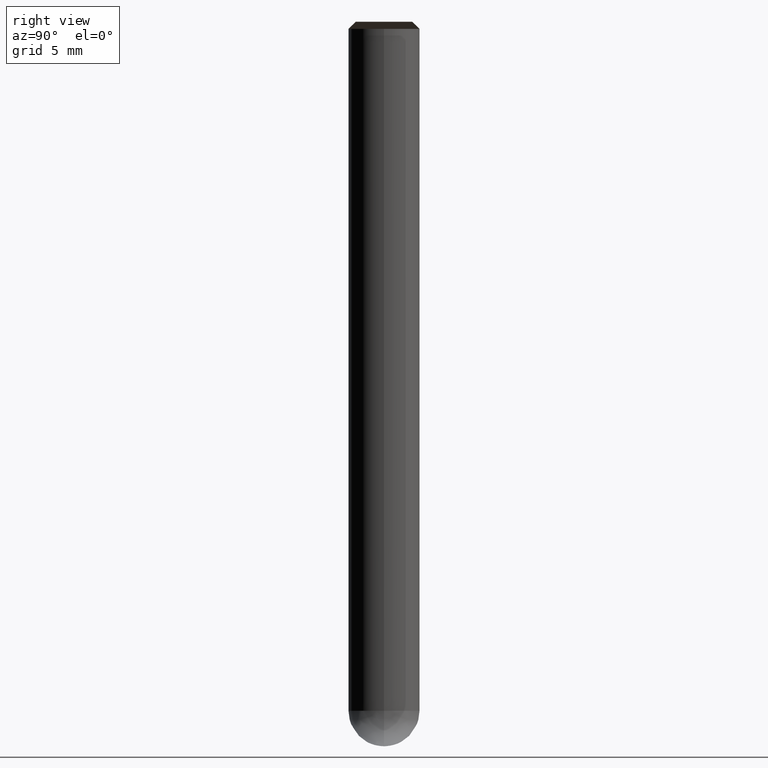
[diagram: clean part render]
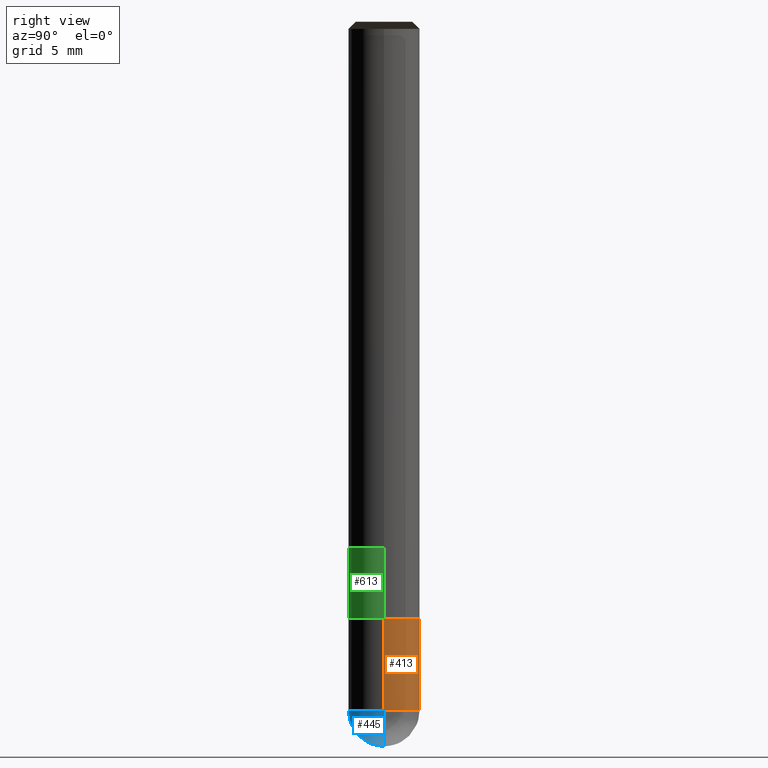
[diagram: same view with three faces highlighted in distinct colors, each labeled with its STEP entity id]
A machine part, right view with three faces highlighted in distinct colors.
Their STEP definitions:

[orange] entity #413 — the highlighted face is a freeform B-spline surface patch.
#328=CARTESIAN_POINT('',(2.5,0.0,-11.5));
#329=CARTESIAN_POINT('',(2.5,2.5,-11.5));
#330=CARTESIAN_POINT('',(0.0,2.5,-11.5));
#331=CARTESIAN_POINT('',(-2.5,2.5,-11.5));
#332=CARTESIAN_POINT('',(-2.5,0.0,-11.5));
#333=CARTESIAN_POINT('',(2.5,0.0,-5.0));
#334=CARTESIAN_POINT('',(2.5,2.5,-5.0));
#335=CARTESIAN_POINT('',(0.0,2.5,-5.0));
#336=CARTESIAN_POINT('',(-2.5,2.5,-5.0));
#337=CARTESIAN_POINT('',(-2.5,0.0,-5.0));
#394=(
BOUNDED_SURFACE()
B_SPLINE_SURFACE(1,2,(
(#328,#329,#330,#331,#332),
(#333,#334,#335,#336,#337)
), .UNSPECIFIED.,.F.,.F.,.F.)
B_SPLINE_SURFACE_WITH_KNOTS((2,2),(3,2,3),(
0.0,1.0),(
0.0,0.5,1.0), .UNSPECIFIED.)
GEOMETRIC_REPRESENTATION_ITEM()
RATIONAL_B_SPLINE_SURFACE(((1.0,0.707106781187,1.0,0.707106781187,1.0),
(1.0,0.707106781187,1.0,0.707106781187,1.0)
))
REPRESENTATION_ITEM('')
SURFACE()
);
#395=(
BOUNDED_CURVE()
B_SPLINE_CURVE(2,(#332,#331,#330,#329,#328),.UNSPECIFIED.,.F.,.F.)
B_SPLINE_CURVE_WITH_KNOTS((3,2,3),
(0.0,0.5,1.0),.UNSPECIFIED.)
CURVE()
GEOMETRIC_REPRESENTATION_ITEM()
RATIONAL_B_SPLINE_CURVE((1.0,0.707106781187,1.0,0.707106781187,1.0))
REPRESENTATION_ITEM('')
);
#396=(
BOUNDED_CURVE()
B_SPLINE_CURVE(1,(#328,#333),.UNSPECIFIED.,.F.,.F.)
B_SPLINE_CURVE_WITH_KNOTS((2,2),
(0.0,1.0),.UNSPECIFIED.)
CURVE()
GEOMETRIC_REPRESENTATION_ITEM()
RATIONAL_B_SPLINE_CURVE((1.0,1.0))
REPRESENTATION_ITEM('')
);
#397=(
BOUNDED_CURVE()
B_SPLINE_CURVE(2,(#333,#334,#335,#336,#337),.UNSPECIFIED.,.F.,.F.)
B_SPLINE_CURVE_WITH_KNOTS((3,2,3),
(0.0,0.5,1.0),.UNSPECIFIED.)
CURVE()
GEOMETRIC_REPRESENTATION_ITEM()
RATIONAL_B_SPLINE_CURVE((1.0,0.707106781187,1.0,0.707106781187,1.0))
REPRESENTATION_ITEM('')
);
#398=(
BOUNDED_CURVE()
B_SPLINE_CURVE(1,(#337,#332),.UNSPECIFIED.,.F.,.F.)
B_SPLINE_CURVE_WITH_KNOTS((2,2),
(0.0,1.0),.UNSPECIFIED.)
CURVE()
GEOMETRIC_REPRESENTATION_ITEM()
RATIONAL_B_SPLINE_CURVE((1.0,1.0))
REPRESENTATION_ITEM('')
);
#399=VERTEX_POINT('',#328);
#400=VERTEX_POINT('',#332);
#401=VERTEX_POINT('',#333);
#402=VERTEX_POINT('',#337);
#403=EDGE_CURVE('',#400,#399,#395,.T.);
#404=EDGE_CURVE('',#399,#401,#396,.T.);
#405=EDGE_CURVE('',#401,#402,#397,.T.);
#406=EDGE_CURVE('',#402,#400,#398,.T.);
#407=ORIENTED_EDGE('',*,*,#403,.T.);
#408=ORIENTED_EDGE('',*,*,#404,.T.);
#409=ORIENTED_EDGE('',*,*,#405,.T.);
#410=ORIENTED_EDGE('',*,*,#406,.T.);
#411=EDGE_LOOP('',(#407,#408,#409,#410));
#412=FACE_OUTER_BOUND('',#411,.T.);
#413=ADVANCED_FACE('',(#412),#394,.T.);

[blue] entity #445 — the highlighted face is a freeform B-spline surface patch.
#322=CARTESIAN_POINT('',(0.0,0.0,-14.0));
#323=CARTESIAN_POINT('',(2.5,0.0,-14.0));
#327=CARTESIAN_POINT('',(-2.5,0.0,-14.0));
#328=CARTESIAN_POINT('',(2.5,0.0,-11.5));
#332=CARTESIAN_POINT('',(-2.5,0.0,-11.5));
#339=CARTESIAN_POINT('',(-2.5,-2.5,-14.0));
#340=CARTESIAN_POINT('',(0.0,-2.5,-14.0));
#341=CARTESIAN_POINT('',(2.5,-2.5,-14.0));
#342=CARTESIAN_POINT('',(-2.5,-2.5,-11.5));
#343=CARTESIAN_POINT('',(0.0,-2.5,-11.5));
#344=CARTESIAN_POINT('',(2.5,-2.5,-11.5));
#430=(
BOUNDED_SURFACE()
B_SPLINE_SURFACE(2,2,(
(#322,#322,#322,#322,#322),
(#327,#339,#340,#341,#323),
(#332,#342,#343,#344,#328)
), .UNSPECIFIED.,.F.,.F.,.F.)
B_SPLINE_SURFACE_WITH_KNOTS((3,3),(3,2,3),(
0.0,1.0),(
0.0,0.5,1.0), .UNSPECIFIED.)
GEOMETRIC_REPRESENTATION_ITEM()
RATIONAL_B_SPLINE_SURFACE(((1.0,0.707106781187,1.0,0.707106781187,1.0),
(0.707106781187,0.5,0.707106781187,0.5,0.707106781187),
(1.0,0.707106781187,1.0,0.707106781187,1.0)
))
REPRESENTATION_ITEM('')
SURFACE()
);
#431=(
BOUNDED_CURVE()
B_SPLINE_CURVE(2,(#328,#323,#322),.UNSPECIFIED.,.F.,.F.)
B_SPLINE_CURVE_WITH_KNOTS((3,3),
(0.0,1.0),.UNSPECIFIED.)
CURVE()
GEOMETRIC_REPRESENTATION_ITEM()
RATIONAL_B_SPLINE_CURVE((1.0,0.707106781187,1.0))
REPRESENTATION_ITEM('')
);
#432=(
BOUNDED_CURVE()
B_SPLINE_CURVE(2,(#322,#327,#332),.UNSPECIFIED.,.F.,.F.)
B_SPLINE_CURVE_WITH_KNOTS((3,3),
(0.0,1.0),.UNSPECIFIED.)
CURVE()
GEOMETRIC_REPRESENTATION_ITEM()
RATIONAL_B_SPLINE_CURVE((1.0,0.707106781187,1.0))
REPRESENTATION_ITEM('')
);
#433=(
BOUNDED_CURVE()
B_SPLINE_CURVE(2,(#332,#342,#343,#344,#328),.UNSPECIFIED.,.F.,.F.)
B_SPLINE_CURVE_WITH_KNOTS((3,2,3),
(0.0,0.5,1.0),.UNSPECIFIED.)
CURVE()
GEOMETRIC_REPRESENTATION_ITEM()
RATIONAL_B_SPLINE_CURVE((1.0,0.707106781187,1.0,0.707106781187,1.0))
REPRESENTATION_ITEM('')
);
#434=VERTEX_POINT('',#322);
#435=VERTEX_POINT('',#328);
#436=VERTEX_POINT('',#332);
#437=EDGE_CURVE('',#435,#434,#431,.T.);
#438=EDGE_CURVE('',#434,#436,#432,.T.);
#439=EDGE_CURVE('',#436,#435,#433,.T.);
#440=ORIENTED_EDGE('',*,*,#437,.T.);
#441=ORIENTED_EDGE('',*,*,#438,.T.);
#442=ORIENTED_EDGE('',*,*,#439,.T.);
#443=EDGE_LOOP('',(#440,#441,#442));
#444=FACE_OUTER_BOUND('',#443,.T.);
#445=ADVANCED_FACE('',(#444),#430,.T.);

[green] entity #613 — the highlighted face is a freeform B-spline surface patch.
#333=CARTESIAN_POINT('',(2.5,0.0,-5.0));
#337=CARTESIAN_POINT('',(-2.5,0.0,-5.0));
#345=CARTESIAN_POINT('',(-2.5,-2.5,-5.0));
#346=CARTESIAN_POINT('',(0.0,-2.5,-5.0));
#347=CARTESIAN_POINT('',(2.5,-2.5,-5.0));
#348=CARTESIAN_POINT('',(2.5,0.0,0.0));
#352=CARTESIAN_POINT('',(-2.5,0.0,0.0));
#364=CARTESIAN_POINT('',(-2.5,-2.5,0.0));
#365=CARTESIAN_POINT('',(0.0,-2.5,0.0));
#366=CARTESIAN_POINT('',(2.5,-2.5,0.0));
#594=(
BOUNDED_SURFACE()
B_SPLINE_SURFACE(1,2,(
(#337,#345,#346,#347,#333),
(#352,#364,#365,#366,#348)
), .UNSPECIFIED.,.F.,.F.,.F.)
B_SPLINE_SURFACE_WITH_KNOTS((2,2),(3,2,3),(
0.0,1.0),(
0.0,0.5,1.0), .UNSPECIFIED.)
GEOMETRIC_REPRESENTATION_ITEM()
RATIONAL_B_SPLINE_SURFACE(((1.0,0.707106781187,1.0,0.707106781187,1.0),
(1.0,0.707106781187,1.0,0.707106781187,1.0)
))
REPRESENTATION_ITEM('')
SURFACE()
);
#595=(
BOUNDED_CURVE()
B_SPLINE_CURVE(2,(#333,#347,#346,#345,#337),.UNSPECIFIED.,.F.,.F.)
B_SPLINE_CURVE_WITH_KNOTS((3,2,3),
(0.0,0.5,1.0),.UNSPECIFIED.)
CURVE()
GEOMETRIC_REPRESENTATION_ITEM()
RATIONAL_B_SPLINE_CURVE((1.0,0.707106781187,1.0,0.707106781187,1.0))
REPRESENTATION_ITEM('')
);
#596=(
BOUNDED_CURVE()
B_SPLINE_CURVE(1,(#337,#352),.UNSPECIFIED.,.F.,.F.)
B_SPLINE_CURVE_WITH_KNOTS((2,2),
(0.0,1.0),.UNSPECIFIED.)
CURVE()
GEOMETRIC_REPRESENTATION_ITEM()
RATIONAL_B_SPLINE_CURVE((1.0,1.0))
REPRESENTATION_ITEM('')
);
#597=(
BOUNDED_CURVE()
B_SPLINE_CURVE(2,(#352,#364,#365,#366,#348),.UNSPECIFIED.,.F.,.F.)
B_SPLINE_CURVE_WITH_KNOTS((3,2,3),
(0.0,0.5,1.0),.UNSPECIFIED.)
CURVE()
GEOMETRIC_REPRESENTATION_ITEM()
RATIONAL_B_SPLINE_CURVE((1.0,0.707106781187,1.0,0.707106781187,1.0))
REPRESENTATION_ITEM('')
);
#598=(
BOUNDED_CURVE()
B_SPLINE_CURVE(1,(#348,#333),.UNSPECIFIED.,.F.,.F.)
B_SPLINE_CURVE_WITH_KNOTS((2,2),
(0.0,1.0),.UNSPECIFIED.)
CURVE()
GEOMETRIC_REPRESENTATION_ITEM()
RATIONAL_B_SPLINE_CURVE((1.0,1.0))
REPRESENTATION_ITEM('')
);
#599=VERTEX_POINT('',#333);
#600=VERTEX_POINT('',#337);
#601=VERTEX_POINT('',#348);
#602=VERTEX_POINT('',#352);
#603=EDGE_CURVE('',#599,#600,#595,.T.);
#604=EDGE_CURVE('',#600,#602,#596,.T.);
#605=EDGE_CURVE('',#602,#601,#597,.T.);
#606=EDGE_CURVE('',#601,#599,#598,.T.);
#607=ORIENTED_EDGE('',*,*,#603,.T.);
#608=ORIENTED_EDGE('',*,*,#604,.T.);
#609=ORIENTED_EDGE('',*,*,#605,.T.);
#610=ORIENTED_EDGE('',*,*,#606,.T.);
#611=EDGE_LOOP('',(#607,#608,#609,#610));
#612=FACE_OUTER_BOUND('',#611,.T.);
#613=ADVANCED_FACE('',(#612),#594,.T.);